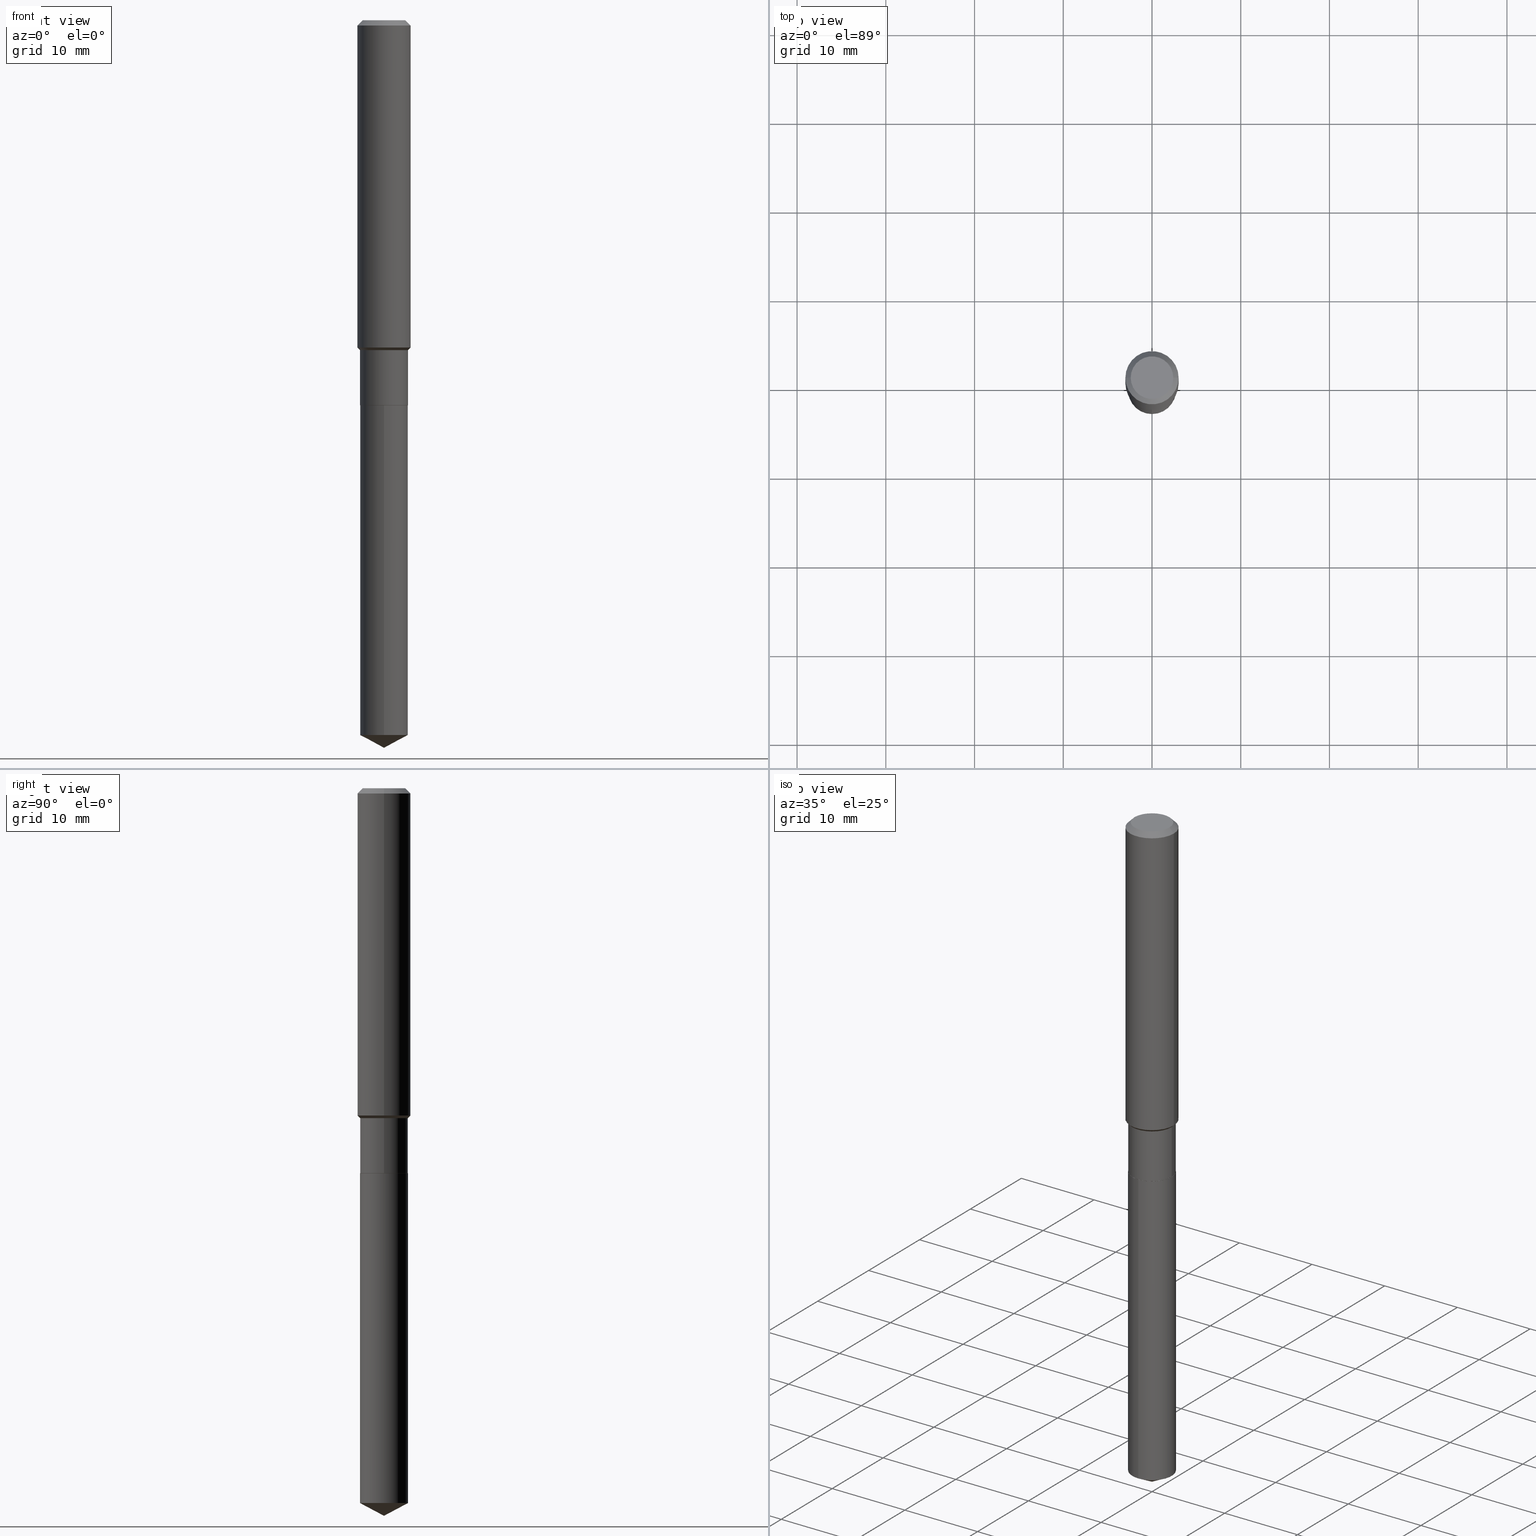
[diagram: canonical four-view strip — front | top / right | iso, engineering-drawing reading convention]
A machine part, canonical four-view strip (front | top / right | iso — engineering-drawing reading convention). The complete STEP part file that produces these views, byte-faithful:
ISO-10303-21;
HEADER;
FILE_DESCRIPTION (( 'STEP AP203' ),
    '1' );
FILE_NAME ('64824.STEP',
    '2024-04-24T19:02:47',
    ( '' ),
    ( '' ),
    'SwSTEP 2.0',
    'SolidWorks 2023',
    '' );
FILE_SCHEMA (( 'CONFIG_CONTROL_DESIGN' ));
ENDSEC;

DATA;
#1 = APPROVAL_ROLE ( '' ) ;
#2 = ORIENTED_EDGE ( 'NONE', *, *, #326, .T. ) ;
#3 = CALENDAR_DATE ( 2024, 24, 4 ) ;
#4 = ORIENTED_EDGE ( 'NONE', *, *, #111, .F. ) ;
#5 = APPROVAL_ROLE ( '' ) ;
#6 = VECTOR ( 'NONE', #345, 39.37007874015748143 ) ;
#7 = VERTEX_POINT ( 'NONE', #127 ) ;
#8 = CC_DESIGN_SECURITY_CLASSIFICATION ( #477, ( #139 ) ) ;
#9 = DIRECTION ( 'NONE',  ( -2.445468806185136597E-29, 3.491481338843145583E-15, 1.000000000000000000 ) ) ;
#10 = ORIENTED_EDGE ( 'NONE', *, *, #112, .T. ) ;
#11 = CARTESIAN_POINT ( 'NONE',  ( 4.178328002247924925E-29, -5.965545015547399442E-15, -1.708600000000000119 ) ) ;
#12 = CC_DESIGN_PERSON_AND_ORGANIZATION_ASSIGNMENT ( #296, #143, ( #183 ) ) ;
#13 = DIRECTION ( 'NONE',  ( -1.000000000000000000, 6.982962677686266711E-15, 0.000000000000000000 ) ) ;
#14 = CARTESIAN_POINT ( 'NONE',  ( 3.551554347222674167E-29, -5.070678348401900425E-15, -1.452299999999999924 ) ) ;
#15 = DIRECTION ( 'NONE',  ( -2.445468806185136597E-29, 3.491481338843145583E-15, 1.000000000000000000 ) ) ;
#16 = VECTOR ( 'NONE', #213, 39.37007874015748143 ) ;
#17 = CARTESIAN_POINT ( 'NONE',  ( 3.551554347222674167E-29, -5.070678348401900425E-15, -1.452299999999999924 ) ) ;
#18 = ORIENTED_EDGE ( 'NONE', *, *, #370, .T. ) ;
#19 = ADVANCED_FACE ( 'NONE', ( #165 ), #115, .T. ) ;
#20 = CARTESIAN_POINT ( 'NONE',  ( 5.776197320209327532E-31, -8.246878922347559293E-17, -0.02362000000000014088 ) ) ;
#21 = CARTESIAN_POINT ( 'NONE',  ( 4.177105267844832684E-29, -5.963799274877977939E-15, -1.708100000000000174 ) ) ;
#22 = ADVANCED_FACE ( 'NONE', ( #205 ), #271, .T. ) ;
#23 = CARTESIAN_POINT ( 'NONE',  ( -0.1063000000000000056, -4.782531623426127570E-15, -1.708100000000000174 ) ) ;
#24 = DIRECTION ( 'NONE',  ( 1.000000000000000000, -6.982962677686266711E-15, 0.000000000000000000 ) ) ;
#25 = CIRCLE ( 'NONE', #60, 0.1180999999999999966 ) ;
#26 =( CONVERSION_BASED_UNIT ( 'INCH', #409 ) LENGTH_UNIT ( ) NAMED_UNIT ( #81 ) );
#27 = ADVANCED_FACE ( 'NONE', ( #233 ), #267, .F. ) ;
#28 = DIRECTION ( 'NONE',  ( -6.982962677686265922E-15, -1.000000000000000000, 5.139883337091746339E-15 ) ) ;
#29 = CIRCLE ( 'NONE', #273, 0.1180999999999999966 ) ;
#31 = FACE_OUTER_BOUND ( 'NONE', #157, .T. ) ;
#30 = CIRCLE ( 'NONE', #53, 0.09447999999999998066 ) ;
#32 = CC_DESIGN_DATE_AND_TIME_ASSIGNMENT ( #223, #118, ( #40 ) ) ;
#33 = PERSON_AND_ORGANIZATION ( #125, #250 ) ;
#34 = VERTEX_POINT ( 'NONE', #55 ) ;
#35 = APPROVAL_STATUS ( 'not_yet_approved' ) ;
#36 = AXIS2_PLACEMENT_3D ( 'NONE', #479, #247, #362 ) ;
#37 = CYLINDRICAL_SURFACE ( 'NONE', #202, 0.1181000000000000799 ) ;
#38 = VERTEX_POINT ( 'NONE', #355 ) ;
#39 = EDGE_CURVE ( 'NONE', #38, #449, #288, .T. ) ;
#40 = PRODUCT_DEFINITION ( 'UNKNOWN', '', #139, #442 ) ;
#41 = VERTEX_POINT ( 'NONE', #170 ) ;
#42 = ORIENTED_EDGE ( 'NONE', *, *, #224, .T. ) ;
#43 = CC_DESIGN_APPROVAL ( #320, ( #139 ) ) ;
#44 = DIRECTION ( 'NONE',  ( -6.982962677686265922E-15, -1.000000000000000000, 2.569941668545873170E-15 ) ) ;
#45 = EDGE_LOOP ( 'NONE', ( #263, #330, #338 ) ) ;
#46 = EDGE_CURVE ( 'NONE', #237, #344, #437, .T. ) ;
#47 = CARTESIAN_POINT ( 'NONE',  ( 7.894676355900257304E-29, -1.127159301439400658E-14, -3.228299999999999947 ) ) ;
#48 = CARTESIAN_POINT ( 'NONE',  ( 4.178328002247924925E-29, -5.965545015547399442E-15, -1.708600000000000119 ) ) ;
#49 = DIRECTION ( 'NONE',  ( -2.445468806185136597E-29, 3.491481338843145583E-15, 1.000000000000000000 ) ) ;
#50 = EDGE_LOOP ( 'NONE', ( #434, #159, #276, #186 ) ) ;
#51 = DIRECTION ( 'NONE',  ( -2.445468806185136597E-29, 3.491481338843145583E-15, 1.000000000000000000 ) ) ;
#52 = EDGE_LOOP ( 'NONE', ( #294, #465, #195, #304 ) ) ;
#53 = AXIS2_PLACEMENT_3D ( 'NONE', #181, #248, #135 ) ;
#54 = DIRECTION ( 'NONE',  ( -2.445468806185136597E-29, 3.491481338843145583E-15, 1.000000000000000000 ) ) ;
#55 = CARTESIAN_POINT ( 'NONE',  ( -0.1180999999999999966, -1.737422597880008561E-15, -0.02362000000000014088 ) ) ;
#56 = DIRECTION ( 'NONE',  ( -2.445459330266783309E-29, 3.491494908897563498E-15, 1.000000000000000000 ) ) ;
#57 = ORIENTED_EDGE ( 'NONE', *, *, #339, .F. ) ;
#58 = DIRECTION ( 'NONE',  ( 1.000000000000000000, -6.982962677686265922E-15, 4.876176775795935793E-29 ) ) ;
#59 = EDGE_CURVE ( 'NONE', #257, #7, #145, .T. ) ;
#60 = AXIS2_PLACEMENT_3D ( 'NONE', #20, #169, #303 ) ;
#61 = UNCERTAINTY_MEASURE_WITH_UNIT (LENGTH_MEASURE( 1.000000000000000082E-05 ), #26, 'distance_accuracy_value', 'NONE');
#62 = LINE ( 'NONE', #323, #16 ) ;
#63 = DIRECTION ( 'NONE',  ( 1.000000000000000000, -6.982962677686267499E-15, 4.876176775795935232E-29 ) ) ;
#64 = CARTESIAN_POINT ( 'NONE',  ( 7.756473442508537005E-29, -1.107422804835909008E-14, -3.171779287414385529 ) ) ;
#65 = LOCAL_TIME ( 15, 2, 47.00000000000000000, #188 ) ;
#66 = AXIS2_PLACEMENT_3D ( 'NONE', #425, #380, #44 ) ;
#68 = DIRECTION ( 'NONE',  ( -2.445459330266783029E-29, 3.491494908897563498E-15, 1.000000000000000000 ) ) ;
#67 = LOCAL_TIME ( 15, 2, 47.00000000000000000, #80 ) ;
#69 = MANIFOLD_SOLID_BREP ( 'Body-Move/Copy2[1]', #470 ) ;
#70 = COORDINATED_UNIVERSAL_TIME_OFFSET ( 5, 0, .BEHIND. ) ;
#71 = APPROVAL_DATE_TIME ( #415, #365 ) ;
#72 = ORIENTED_EDGE ( 'NONE', *, *, #326, .F. ) ;
#73 = CALENDAR_DATE ( 2024, 24, 4 ) ;
#74 = AXIS2_PLACEMENT_3D ( 'NONE', #11, #204, #385 ) ;
#75 = EDGE_CURVE ( 'NONE', #480, #34, #29, .T. ) ;
#76 = VECTOR ( 'NONE', #101, 39.37007874015748143 ) ;
#77 = ORIENTED_EDGE ( 'NONE', *, *, #206, .F. ) ;
#78 = APPLICATION_PROTOCOL_DEFINITION ( 'international standard', 'config_control_design', 1994, #394 ) ;
#79 = EDGE_LOOP ( 'NONE', ( #225, #461, #91, #99 ) ) ;
#80 = COORDINATED_UNIVERSAL_TIME_OFFSET ( 5, 0, .BEHIND. ) ;
#81 = DIMENSIONAL_EXPONENTS ( 1.000000000000000000, 0.000000000000000000, 0.000000000000000000, 0.000000000000000000, 0.000000000000000000, 0.000000000000000000, 0.000000000000000000 ) ;
#82 = CYLINDRICAL_SURFACE ( 'NONE', #66, 0.1063000000000000056 ) ;
#83 = EDGE_LOOP ( 'NONE', ( #72, #372, #152, #191 ) ) ;
#84 = DIRECTION ( 'NONE',  ( -2.445468806185136597E-29, 3.491481338843145583E-15, 1.000000000000000000 ) ) ;
#85 = CIRCLE ( 'NONE', #331, 0.1181000000000001632 ) ;
#86 = DIRECTION ( 'NONE',  ( 2.445468806185136597E-29, -3.491481338843145583E-15, -1.000000000000000000 ) ) ;
#87 = LINE ( 'NONE', #162, #251 ) ;
#88 = DIRECTION ( 'NONE',  ( -2.445468806185136597E-29, 3.491481338843145583E-15, 1.000000000000000000 ) ) ;
#89 = ADVANCED_FACE ( 'NONE', ( #197 ), #460, .T. ) ;
#90 = DIRECTION ( 'NONE',  ( -6.982962677686265922E-15, -1.000000000000000000, 2.569941668545873170E-15 ) ) ;
#91 = ORIENTED_EDGE ( 'NONE', *, *, #463, .T. ) ;
#92 = DIRECTION ( 'NONE',  ( -2.445459330266783029E-29, 3.491494908897563498E-15, 1.000000000000000000 ) ) ;
#93 = DIRECTION ( 'NONE',  ( 1.000000000000000000, -6.982962677686267499E-15, 4.876176775795935232E-29 ) ) ;
#94 = AXIS2_PLACEMENT_3D ( 'NONE', #466, #49, #433 ) ;
#95 =( GEOMETRIC_REPRESENTATION_CONTEXT ( 3 ) GLOBAL_UNCERTAINTY_ASSIGNED_CONTEXT ( ( #61 ) ) GLOBAL_UNIT_ASSIGNED_CONTEXT ( ( #26, #451, #113 ) ) REPRESENTATION_CONTEXT ( 'NONE', 'WORKASPACE' ) );
#96 = DIRECTION ( 'NONE',  ( -2.445459330266783309E-29, 3.491494908897563498E-15, 1.000000000000000000 ) ) ;
#97 = CARTESIAN_POINT ( 'NONE',  ( 0.1180999999999999966, -9.071566814582237199E-16, -0.02362000000000014088 ) ) ;
#98 = ADVANCED_FACE ( 'NONE', ( #386 ), #373, .T. ) ;
#99 = ORIENTED_EDGE ( 'NONE', *, *, #153, .F. ) ;
#100 = AXIS2_PLACEMENT_3D ( 'NONE', #284, #322, #481 ) ;
#101 = DIRECTION ( 'NONE',  ( -0.7071067811866199593, 7.493145998870616062E-15, 0.7071067811864750752 ) ) ;
#102 = PLANE ( 'NONE',  #408 ) ;
#103 =( LENGTH_UNIT ( ) NAMED_UNIT ( * ) SI_UNIT ( $, .METRE. ) );
#104 = EDGE_CURVE ( 'NONE', #114, #237, #175, .T. ) ;
#105 = AXIS2_PLACEMENT_3D ( 'NONE', #174, #171, #448 ) ;
#106 = PRODUCT_DEFINITION_SHAPE ( 'NONE', 'NONE',  #40 ) ;
#107 = CIRCLE ( 'NONE', #164, 0.1062999999999999640 ) ;
#108 = DIRECTION ( 'NONE',  ( 1.000000000000000000, -6.982962677686266711E-15, 4.876176775795936353E-29 ) ) ;
#109 = APPROVAL_STATUS ( 'not_yet_approved' ) ;
#110 = VERTEX_POINT ( 'NONE', #404 ) ;
#111 = EDGE_CURVE ( 'NONE', #7, #257, #364, .T. ) ;
#112 = EDGE_CURVE ( 'NONE', #449, #41, #464, .T. ) ;
#113 =( NAMED_UNIT ( * ) SI_UNIT ( $, .STERADIAN. ) SOLID_ANGLE_UNIT ( ) );
#114 = VERTEX_POINT ( 'NONE', #262 ) ;
#115 = CONICAL_SURFACE ( 'NONE', #347, 74.04434902938388063, 1.082104136236488490 ) ;
#116 = AXIS2_PLACEMENT_3D ( 'NONE', #313, #390, #232 ) ;
#117 = EDGE_LOOP ( 'NONE', ( #187, #426, #379, #77 ) ) ;
#118 = DATE_TIME_ROLE ( 'creation_date' ) ;
#119 = CARTESIAN_POINT ( 'NONE',  ( -0.1062999999999999917, 7.553069281129864387E-16, -5.228828000940964357E-30 ) ) ;
#120 = EDGE_LOOP ( 'NONE', ( #455, #2, #474, #420 ) ) ;
#121 = CARTESIAN_POINT ( 'NONE',  ( 3.580410879135658789E-29, -5.111877828200250276E-15, -1.464100000000000179 ) ) ;
#122 = ORIENTED_EDGE ( 'NONE', *, *, #39, .F. ) ;
#123 = DIRECTION ( 'NONE',  ( 1.000000000000000000, -6.982962677686270655E-15, 0.000000000000000000 ) ) ;
#124 = DIRECTION ( 'NONE',  ( 2.438088387897960049E-29, -3.491481338843145188E-15, -1.000000000000000000 ) ) ;
#125 = PERSON ( 'UNSPECIFIED', 'UNSPECIFIED', 'UNSPECIFIED', ('UNSPECIFIED'), ('UNSPECIFIED'), ('UNSPECIFIED') ) ;
#126 = LINE ( 'NONE', #201, #258 ) ;
#127 = CARTESIAN_POINT ( 'NONE',  ( 0.1058000000000000052, -6.704342466846605785E-15, -1.708600000000000119 ) ) ;
#128 = ADVANCED_FACE ( 'NONE', ( #291 ), #82, .T. ) ;
#129 = EDGE_CURVE ( 'NONE', #110, #342, #194, .T. ) ;
#130 = CARTESIAN_POINT ( 'NONE',  ( 3.580410879135658789E-29, -5.111877828200250276E-15, -1.464100000000000179 ) ) ;
#131 = DIRECTION ( 'NONE',  ( -6.982962677686267499E-15, -1.000000000000000000, 3.541896320645544303E-15 ) ) ;
#132 = LINE ( 'NONE', #387, #324 ) ;
#133 = DIRECTION ( 'NONE',  ( -6.982962677686265922E-15, -1.000000000000000000, 5.139883337091746339E-15 ) ) ;
#134 = VECTOR ( 'NONE', #468, 39.37007874015748143 ) ;
#135 = DIRECTION ( 'NONE',  ( 1.000000000000000000, -6.982962677686267499E-15, 4.875432709231658792E-29 ) ) ;
#136 = ORIENTED_EDGE ( 'NONE', *, *, #39, .T. ) ;
#137 = LINE ( 'NONE', #279, #252 ) ;
#138 = FACE_OUTER_BOUND ( 'NONE', #150, .T. ) ;
#139 = PRODUCT_DEFINITION_FORMATION_WITH_SPECIFIED_SOURCE ( 'ANY', '', #183, .NOT_KNOWN. ) ;
#140 = PLANE ( 'NONE',  #100 ) ;
#141 = ADVANCED_FACE ( 'NONE', ( #287 ), #37, .T. ) ;
#142 = CARTESIAN_POINT ( 'NONE',  ( 0.1058000000000000052, -6.704342466846605785E-15, -1.708600000000000119 ) ) ;
#143 = PERSON_AND_ORGANIZATION_ROLE ( 'design_owner' ) ;
#144 = APPLICATION_CONTEXT ( 'configuration controlled 3d designs of mechanical parts and assemblies' ) ;
#145 = CIRCLE ( 'NONE', #222, 0.1058000000000000052 ) ;
#146 = DIRECTION ( 'NONE',  ( 1.000000000000000000, 0.000000000000000000, 0.000000000000000000 ) ) ;
#147 = CC_DESIGN_PERSON_AND_ORGANIZATION_ASSIGNMENT ( #329, #182, ( #139 ) ) ;
#148 = ORIENTED_EDGE ( 'NONE', *, *, #286, .F. ) ;
#149 = PERSON_AND_ORGANIZATION ( #125, #250 ) ;
#150 = EDGE_LOOP ( 'NONE', ( #220, #469, #203, #57 ) ) ;
#151 = PERSON_AND_ORGANIZATION ( #125, #250 ) ;
#152 = ORIENTED_EDGE ( 'NONE', *, *, #227, .T. ) ;
#153 = EDGE_CURVE ( 'NONE', #449, #38, #419, .T. ) ;
#154 = AXIS2_PLACEMENT_3D ( 'NONE', #436, #278, #93 ) ;
#155 = AXIS2_PLACEMENT_3D ( 'NONE', #214, #301, #334 ) ;
#156 = APPROVAL_PERSON_ORGANIZATION ( #459, #365, #5 ) ;
#157 = EDGE_LOOP ( 'NONE', ( #18, #361 ) ) ;
#158 = CARTESIAN_POINT ( 'NONE',  ( 4.178328002247924925E-29, -5.965545015547399442E-15, -1.708600000000000119 ) ) ;
#159 = ORIENTED_EDGE ( 'NONE', *, *, #339, .T. ) ;
#160 = CARTESIAN_POINT ( 'NONE',  ( 0.1062999999999999917, -7.422889326380501387E-16, 5.183375912671078649E-30 ) ) ;
#161 = CARTESIAN_POINT ( 'NONE',  ( 5.776197320209327532E-31, -8.246878922347559293E-17, -0.02362000000000014088 ) ) ;
#163 = AXIS2_PLACEMENT_3D ( 'NONE', #476, #124, #395 ) ;
#162 = CARTESIAN_POINT ( 'NONE',  ( -0.1181000000000000799, 8.391509709326788873E-16, -5.809262341591047988E-30 ) ) ;
#164 = AXIS2_PLACEMENT_3D ( 'NONE', #121, #51, #207 ) ;
#165 = FACE_OUTER_BOUND ( 'NONE', #333, .T. ) ;
#166 = CC_DESIGN_PERSON_AND_ORGANIZATION_ASSIGNMENT ( #253, #412, ( #477 ) ) ;
#167 = FACE_OUTER_BOUND ( 'NONE', #50, .T. ) ;
#168 = VERTEX_POINT ( 'NONE', #471 ) ;
#169 = DIRECTION ( 'NONE',  ( -2.445468806185136597E-29, 3.491481338843145583E-15, 1.000000000000000000 ) ) ;
#170 = CARTESIAN_POINT ( 'NONE',  ( -0.1062999999999999640, -4.782531623426127570E-15, -1.464100000000000179 ) ) ;
#171 = DIRECTION ( 'NONE',  ( -2.445468806185136597E-29, 3.491481338843145583E-15, 1.000000000000000000 ) ) ;
#172 = ORIENTED_EDGE ( 'NONE', *, *, #383, .F. ) ;
#173 = CIRCLE ( 'NONE', #478, 0.1181000000000001632 ) ;
#174 = CARTESIAN_POINT ( 'NONE',  ( 4.178328002247924925E-29, -5.965545015547399442E-15, -1.708600000000000119 ) ) ;
#175 = LINE ( 'NONE', #321, #410 ) ;
#176 = DIRECTION ( 'NONE',  ( -2.445468806185136597E-29, 3.491481338843145583E-15, 1.000000000000000000 ) ) ;
#177 = DIRECTION ( 'NONE',  ( 1.000000000000000000, -6.982962677686263555E-15, 0.000000000000000000 ) ) ;
#178 = AXIS2_PLACEMENT_3D ( 'NONE', #21, #15, #309 ) ;
#179 = PRODUCT_RELATED_PRODUCT_CATEGORY ( 'detail', '', ( #183 ) ) ;
#180 = CC_DESIGN_APPROVAL ( #365, ( #477 ) ) ;
#181 = CARTESIAN_POINT ( 'NONE',  ( 4.716267017698007905E-46, -6.733579360998555036E-32, -1.928573779297252010E-17 ) ) ;
#182 = PERSON_AND_ORGANIZATION_ROLE ( 'creator' ) ;
#183 = PRODUCT ( '64824', '64824', '', ( #421 ) ) ;
#184 = EDGE_CURVE ( 'NONE', #114, #344, #268, .T. ) ;
#185 = DIRECTION ( 'NONE',  ( 0.000000000000000000, 0.000000000000000000, 1.000000000000000000 ) ) ;
#186 = ORIENTED_EDGE ( 'NONE', *, *, #312, .F. ) ;
#187 = ORIENTED_EDGE ( 'NONE', *, *, #383, .T. ) ;
#188 = COORDINATED_UNIVERSAL_TIME_OFFSET ( 5, 0, .BEHIND. ) ;
#189 = ORIENTED_EDGE ( 'NONE', *, *, #422, .T. ) ;
#190 = DATE_AND_TIME ( #487, #65 ) ;
#191 = ORIENTED_EDGE ( 'NONE', *, *, #351, .F. ) ;
#192 = CC_DESIGN_DATE_AND_TIME_ASSIGNMENT ( #374, #454, ( #477 ) ) ;
#193 = CONICAL_SURFACE ( 'NONE', #94, 0.1062999999999999640, 0.7853981633974511656 ) ;
#194 = LINE ( 'NONE', #453, #429 ) ;
#195 = ORIENTED_EDGE ( 'NONE', *, *, #286, .T. ) ;
#196 = FACE_OUTER_BOUND ( 'NONE', #120, .T. ) ;
#197 = FACE_OUTER_BOUND ( 'NONE', #52, .T. ) ;
#198 = FACE_OUTER_BOUND ( 'NONE', #241, .T. ) ;
#199 = CC_DESIGN_PERSON_AND_ORGANIZATION_ASSIGNMENT ( #285, #226, ( #139 ) ) ;
#200 = EDGE_LOOP ( 'NONE', ( #4, #269 ) ) ;
#202 = AXIS2_PLACEMENT_3D ( 'NONE', #341, #9, #108 ) ;
#201 = CARTESIAN_POINT ( 'NONE',  ( 0.1180999999999999966, -8.926936027602933910E-16, -0.02362000000000014088 ) ) ;
#203 = ORIENTED_EDGE ( 'NONE', *, *, #209, .T. ) ;
#204 = DIRECTION ( 'NONE',  ( -2.445459330266783309E-29, 3.491494908897563498E-15, 1.000000000000000000 ) ) ;
#205 = FACE_OUTER_BOUND ( 'NONE', #352, .T. ) ;
#206 = EDGE_CURVE ( 'NONE', #344, #256, #305, .T. ) ;
#207 = DIRECTION ( 'NONE',  ( 1.000000000000000000, -6.982962677686263555E-15, 0.000000000000000000 ) ) ;
#208 = ORIENTED_EDGE ( 'NONE', *, *, #46, .T. ) ;
#209 = EDGE_CURVE ( 'NONE', #38, #110, #427, .T. ) ;
#210 = FACE_OUTER_BOUND ( 'NONE', #45, .T. ) ;
#211 = CARTESIAN_POINT ( 'NONE',  ( 4.178328002247924925E-29, -5.965545015547399442E-15, -1.708600000000000119 ) ) ;
#212 = DIRECTION ( 'NONE',  ( -2.445468806185136597E-29, 3.491481338843145583E-15, 1.000000000000000000 ) ) ;
#213 = DIRECTION ( 'NONE',  ( -0.7071067811865495711, 7.493145998870362049E-15, 0.7071067811865454633 ) ) ;
#214 = CARTESIAN_POINT ( 'NONE',  ( 4.178328002247924925E-29, -5.965545015547399442E-15, -1.708600000000000119 ) ) ;
#215 = AXIS2_PLACEMENT_3D ( 'NONE', #158, #56, #90 ) ;
#216 = CYLINDRICAL_SURFACE ( 'NONE', #275, 0.1062999999999999917 ) ;
#217 = ADVANCED_FACE ( 'NONE', ( #354 ), #356, .T. ) ;
#218 = CALENDAR_DATE ( 2024, 24, 4 ) ;
#219 = ORIENTED_EDGE ( 'NONE', *, *, #104, .T. ) ;
#220 = ORIENTED_EDGE ( 'NONE', *, *, #112, .F. ) ;
#221 = AXIS2_PLACEMENT_3D ( 'NONE', #64, #483, #28 ) ;
#222 = AXIS2_PLACEMENT_3D ( 'NONE', #48, #243, #306 ) ;
#223 = DATE_AND_TIME ( #73, #349 ) ;
#224 = EDGE_CURVE ( 'NONE', #457, #480, #126, .T. ) ;
#225 = ORIENTED_EDGE ( 'NONE', *, *, #458, .F. ) ;
#226 = PERSON_AND_ORGANIZATION_ROLE ( 'design_supplier' ) ;
#227 = EDGE_CURVE ( 'NONE', #342, #480, #132, .T. ) ;
#228 = ORIENTED_EDGE ( 'NONE', *, *, #129, .F. ) ;
#229 = EDGE_LOOP ( 'NONE', ( #298, #423, #122, #376 ) ) ;
#230 = AXIS2_PLACEMENT_3D ( 'NONE', #244, #443, #403 ) ;
#231 = AXIS2_PLACEMENT_3D ( 'NONE', #130, #242, #270 ) ;
#232 = DIRECTION ( 'NONE',  ( 1.000000000000000000, -6.982962677686266711E-15, 4.876176775795936353E-29 ) ) ;
#233 = FACE_OUTER_BOUND ( 'NONE', #428, .T. ) ;
#234 = LINE ( 'NONE', #310, #6 ) ;
#235 = ORIENTED_EDGE ( 'NONE', *, *, #209, .F. ) ;
#236 = CARTESIAN_POINT ( 'NONE',  ( 0.1181000000000001632, -5.895366240636649477E-15, -1.452299999999999924 ) ) ;
#237 = VERTEX_POINT ( 'NONE', #272 ) ;
#239 = AXIS2_PLACEMENT_3D ( 'NONE', #346, #86, #13 ) ;
#238 = CYLINDRICAL_SURFACE ( 'NONE', #116, 0.1181000000000000799 ) ;
#240 = LOCAL_TIME ( 15, 2, 47.00000000000000000, #255 ) ;
#241 = EDGE_LOOP ( 'NONE', ( #311, #189, #260, #228 ) ) ;
#242 = DIRECTION ( 'NONE',  ( -2.445468806185136597E-29, 3.491481338843145583E-15, 1.000000000000000000 ) ) ;
#243 = DIRECTION ( 'NONE',  ( -2.445468806185136597E-29, 3.491481338843145583E-15, 1.000000000000000000 ) ) ;
#244 = CARTESIAN_POINT ( 'NONE',  ( 4.178328002247924925E-29, -5.965545015547399442E-15, -1.708600000000000119 ) ) ;
#245 = AXIS2_PLACEMENT_3D ( 'NONE', #360, #212, #283 ) ;
#246 = ADVANCED_FACE ( 'NONE', ( #196 ), #238, .T. ) ;
#247 = DIRECTION ( 'NONE',  ( -2.445459330266783309E-29, 3.491494908897563498E-15, 1.000000000000000000 ) ) ;
#248 = DIRECTION ( 'NONE',  ( -2.445468806185136597E-29, 3.491481338843145583E-15, 1.000000000000000000 ) ) ;
#249 = CARTESIAN_POINT ( 'NONE',  ( 0.000000000000000000, 0.000000000000000000, 0.000000000000000000 ) ) ;
#250 = ORGANIZATION ( 'UNSPECIFIED', 'UNSPECIFIED', '' ) ;
#251 = VECTOR ( 'NONE', #439, 39.37007874015748143 ) ;
#252 = VECTOR ( 'NONE', #68, 39.37007874015748143 ) ;
#253 = PERSON_AND_ORGANIZATION ( #125, #250 ) ;
#254 = CARTESIAN_POINT ( 'NONE',  ( 4.177105267844832684E-29, -5.963799274877977939E-15, -1.708100000000000174 ) ) ;
#255 = COORDINATED_UNIVERSAL_TIME_OFFSET ( 5, 0, .BEHIND. ) ;
#256 = VERTEX_POINT ( 'NONE', #393 ) ;
#257 = VERTEX_POINT ( 'NONE', #343 ) ;
#258 = VECTOR ( 'NONE', #350, 39.37007874015748143 ) ;
#259 = CC_DESIGN_APPROVAL ( #414, ( #40 ) ) ;
#260 = ORIENTED_EDGE ( 'NONE', *, *, #295, .F. ) ;
#261 = COORDINATED_UNIVERSAL_TIME_OFFSET ( 5, 0, .BEHIND. ) ;
#262 = CARTESIAN_POINT ( 'NONE',  ( 7.894676355900257304E-29, -1.127159301439400500E-14, -3.228299999999999947 ) ) ;
#263 = ORIENTED_EDGE ( 'NONE', *, *, #104, .F. ) ;
#264 = CARTESIAN_POINT ( 'NONE',  ( 3.580410879135658789E-29, -5.111877828200250276E-15, -1.464100000000000179 ) ) ;
#265 = ORIENTED_EDGE ( 'NONE', *, *, #369, .F. ) ;
#266 = CARTESIAN_POINT ( 'NONE',  ( -0.1181000000000001632, -4.231527377469220651E-15, -1.452299999999999924 ) ) ;
#267 = PLANE ( 'NONE',  #163 ) ;
#268 = LINE ( 'NONE', #47, #282 ) ;
#269 = ORIENTED_EDGE ( 'NONE', *, *, #59, .F. ) ;
#270 = DIRECTION ( 'NONE',  ( 1.000000000000000000, -6.982962677686263555E-15, 0.000000000000000000 ) ) ;
#271 = CYLINDRICAL_SURFACE ( 'NONE', #154, 0.1062999999999999917 ) ;
#273 = AXIS2_PLACEMENT_3D ( 'NONE', #397, #88, #24 ) ;
#272 = CARTESIAN_POINT ( 'NONE',  ( 7.553069281130638457E-16, 0.1062999999999889034, -3.171779287414385973 ) ) ;
#274 = ADVANCED_FACE ( 'NONE', ( #198 ), #193, .T. ) ;
#275 = AXIS2_PLACEMENT_3D ( 'NONE', #249, #176, #63 ) ;
#276 = ORIENTED_EDGE ( 'NONE', *, *, #129, .T. ) ;
#277 = LINE ( 'NONE', #142, #384 ) ;
#278 = DIRECTION ( 'NONE',  ( -2.445468806185136597E-29, 3.491481338843145583E-15, 1.000000000000000000 ) ) ;
#279 = CARTESIAN_POINT ( 'NONE',  ( 7.553069281130281498E-16, 0.1062999999999940520, -1.708600000000000563 ) ) ;
#280 = EDGE_CURVE ( 'NONE', #168, #256, #444, .T. ) ;
#281 = FACE_OUTER_BOUND ( 'NONE', #79, .T. ) ;
#282 = VECTOR ( 'NONE', #308, 39.37007874015748854 ) ;
#283 = DIRECTION ( 'NONE',  ( 1.000000000000000000, -6.982962677686267499E-15, 4.875432709231658792E-29 ) ) ;
#284 = CARTESIAN_POINT ( 'NONE',  ( 4.178328002247924925E-29, -5.965545015547399442E-15, -1.708600000000000119 ) ) ;
#285 = PERSON_AND_ORGANIZATION ( #125, #250 ) ;
#286 = EDGE_CURVE ( 'NONE', #440, #34, #234, .T. ) ;
#287 = FACE_OUTER_BOUND ( 'NONE', #83, .T. ) ;
#288 = CIRCLE ( 'NONE', #178, 0.1063000000000000056 ) ;
#289 = CIRCLE ( 'NONE', #359, 0.1062999999999999640 ) ;
#290 = PERSON_AND_ORGANIZATION_ROLE ( 'creator' ) ;
#291 = FACE_OUTER_BOUND ( 'NONE', #382, .T. ) ;
#292 = ORIENTED_EDGE ( 'NONE', *, *, #447, .F. ) ;
#293 = DATE_AND_TIME ( #424, #67 ) ;
#294 = ORIENTED_EDGE ( 'NONE', *, *, #224, .F. ) ;
#295 = EDGE_CURVE ( 'NONE', #342, #302, #85, .T. ) ;
#296 = PERSON_AND_ORGANIZATION ( #125, #250 ) ;
#297 = CONICAL_SURFACE ( 'NONE', #230, 0.1058000000000000052, 0.7853981633975507526 ) ;
#298 = ORIENTED_EDGE ( 'NONE', *, *, #111, .T. ) ;
#299 = AXIS2_PLACEMENT_3D ( 'NONE', #254, #413, #332 ) ;
#300 = LOCAL_TIME ( 15, 2, 47.00000000000000000, #70 ) ;
#301 = DIRECTION ( 'NONE',  ( -2.445468806185136597E-29, 3.491481338843145583E-15, 1.000000000000000000 ) ) ;
#302 = VERTEX_POINT ( 'NONE', #266 ) ;
#303 = DIRECTION ( 'NONE',  ( 1.000000000000000000, -6.982962677686266711E-15, 0.000000000000000000 ) ) ;
#304 = ORIENTED_EDGE ( 'NONE', *, *, #351, .T. ) ;
#305 = LINE ( 'NONE', #475, #485 ) ;
#306 = DIRECTION ( 'NONE',  ( 1.000000000000000000, -6.982962677686264344E-15, 0.000000000000000000 ) ) ;
#307 = CIRCLE ( 'NONE', #221, 0.1063000000000000056 ) ;
#308 = DIRECTION ( 'NONE',  ( -6.165590087286841551E-15, -0.8829475928589272105, 0.4694715627858901952 ) ) ;
#309 = DIRECTION ( 'NONE',  ( 1.000000000000000000, -6.982962677686269077E-15, 0.000000000000000000 ) ) ;
#310 = CARTESIAN_POINT ( 'NONE',  ( -0.1180999999999999966, 7.422191030112725094E-16, -0.02362000000000014088 ) ) ;
#311 = ORIENTED_EDGE ( 'NONE', *, *, #353, .T. ) ;
#312 = EDGE_CURVE ( 'NONE', #302, #342, #173, .T. ) ;
#313 = CARTESIAN_POINT ( 'NONE',  ( 0.000000000000000000, 0.000000000000000000, 0.000000000000000000 ) ) ;
#314 = CARTESIAN_POINT ( 'NONE',  ( 7.756473442508537005E-29, -1.107422804835909008E-14, -3.171779287414385529 ) ) ;
#315 = CONICAL_SURFACE ( 'NONE', #105, 0.1058000000000000052, 0.7853981633975507526 ) ;
#317 = AXIS2_PLACEMENT_3D ( 'NONE', #314, #357, #133 ) ;
#316 = FACE_OUTER_BOUND ( 'NONE', #229, .T. ) ;
#318 = CARTESIAN_POINT ( 'NONE',  ( -8.838323384200168694E-28, 1.261888596555570187E-13, 36.14177874015747705 ) ) ;
#319 = CARTESIAN_POINT ( 'NONE',  ( -0.1058000000000000052, -5.213790801113213409E-15, -1.708600000000000119 ) ) ;
#320 = APPROVAL ( #336, 'UNSPECIFIED' ) ;
#321 = CARTESIAN_POINT ( 'NONE',  ( 7.894709020952549951E-29, -1.127154664280404842E-14, -3.228299999999999947 ) ) ;
#322 = DIRECTION ( 'NONE',  ( 2.445459330266782749E-29, -3.491494908897563498E-15, -1.000000000000000000 ) ) ;
#323 = CARTESIAN_POINT ( 'NONE',  ( -0.1062999999999999640, -4.356570900087264133E-15, -1.464100000000000179 ) ) ;
#324 = VECTOR ( 'NONE', #396, 39.37007874015748143 ) ;
#325 = AXIS2_PLACEMENT_3D ( 'NONE', #358, #327, #399 ) ;
#326 = EDGE_CURVE ( 'NONE', #302, #34, #87, .T. ) ;
#327 = DIRECTION ( 'NONE',  ( -2.445459330266783309E-29, 3.491494908897563498E-15, 1.000000000000000000 ) ) ;
#328 = ADVANCED_FACE ( 'NONE', ( #167 ), #452, .T. ) ;
#329 = PERSON_AND_ORGANIZATION ( #125, #250 ) ;
#330 = ORIENTED_EDGE ( 'NONE', *, *, #184, .T. ) ;
#331 = AXIS2_PLACEMENT_3D ( 'NONE', #14, #54, #123 ) ;
#332 = DIRECTION ( 'NONE',  ( 1.000000000000000000, -6.982962677686269077E-15, 0.000000000000000000 ) ) ;
#333 = EDGE_LOOP ( 'NONE', ( #391, #219, #172 ) ) ;
#334 = DIRECTION ( 'NONE',  ( 1.000000000000000000, -6.982962677686264344E-15, 0.000000000000000000 ) ) ;
#335 = ORIENTED_EDGE ( 'NONE', *, *, #280, .F. ) ;
#336 = APPROVAL_STATUS ( 'not_yet_approved' ) ;
#337 = APPROVAL_PERSON_ORGANIZATION ( #33, #414, #1 ) ;
#338 = ORIENTED_EDGE ( 'NONE', *, *, #46, .F. ) ;
#339 = EDGE_CURVE ( 'NONE', #41, #110, #107, .T. ) ;
#340 = AXIS2_PLACEMENT_3D ( 'NONE', #161, #388, #472 ) ;
#341 = CARTESIAN_POINT ( 'NONE',  ( 0.000000000000000000, 0.000000000000000000, 0.000000000000000000 ) ) ;
#342 = VERTEX_POINT ( 'NONE', #236 ) ;
#343 = CARTESIAN_POINT ( 'NONE',  ( -0.1058000000000000052, -5.211141573939102208E-15, -1.708600000000000119 ) ) ;
#344 = VERTEX_POINT ( 'NONE', #435 ) ;
#345 = DIRECTION ( 'NONE',  ( -0.7071067811865459074, 2.468850131082240100E-15, -0.7071067811865491270 ) ) ;
#346 = CARTESIAN_POINT ( 'NONE',  ( 5.776197320209327532E-31, -8.246878922347559293E-17, -0.02362000000000014088 ) ) ;
#347 = AXIS2_PLACEMENT_3D ( 'NONE', #318, #96, #131 ) ;
#348 = VECTOR ( 'NONE', #416, 39.37007874015748143 ) ;
#349 = LOCAL_TIME ( 15, 2, 47.00000000000000000, #261 ) ;
#350 = DIRECTION ( 'NONE',  ( 0.7071067811865459074, -7.319954787623249734E-15, -0.7071067811865491270 ) ) ;
#351 = EDGE_CURVE ( 'NONE', #34, #480, #25, .T. ) ;
#352 = EDGE_LOOP ( 'NONE', ( #136, #10, #368, #235 ) ) ;
#353 = EDGE_CURVE ( 'NONE', #110, #41, #289, .T. ) ;
#354 = FACE_OUTER_BOUND ( 'NONE', #117, .T. ) ;
#355 = CARTESIAN_POINT ( 'NONE',  ( 0.1063000000000000056, -6.706088207516028077E-15, -1.708100000000000174 ) ) ;
#356 = CYLINDRICAL_SURFACE ( 'NONE', #74, 0.1063000000000000056 ) ;
#357 = DIRECTION ( 'NONE',  ( -2.445459330266783309E-29, 3.491494908897563498E-15, 1.000000000000000000 ) ) ;
#359 = AXIS2_PLACEMENT_3D ( 'NONE', #264, #84, #177 ) ;
#358 = CARTESIAN_POINT ( 'NONE',  ( -8.838323384200168694E-28, 1.261888596555570187E-13, 36.14177874015747705 ) ) ;
#360 = CARTESIAN_POINT ( 'NONE',  ( 4.716267017698007905E-46, -6.733579360998555036E-32, -1.928573779297252010E-17 ) ) ;
#361 = ORIENTED_EDGE ( 'NONE', *, *, #280, .T. ) ;
#362 = DIRECTION ( 'NONE',  ( -6.982962677686265922E-15, -1.000000000000000000, 2.569941668545873170E-15 ) ) ;
#363 = CARTESIAN_POINT ( 'NONE',  ( -0.09447999999999998066, 7.009847083995354710E-16, -1.928573779297727792E-17 ) ) ;
#364 = CIRCLE ( 'NONE', #155, 0.1058000000000000052 ) ;
#365 = APPROVAL ( #109, 'UNSPECIFIED' ) ;
#366 = APPROVAL_ROLE ( '' ) ;
#367 = SECURITY_CLASSIFICATION_LEVEL ( 'unclassified' ) ;
#368 = ORIENTED_EDGE ( 'NONE', *, *, #353, .F. ) ;
#369 = EDGE_CURVE ( 'NONE', #457, #440, #489, .T. ) ;
#370 = EDGE_CURVE ( 'NONE', #256, #168, #401, .T. ) ;
#371 = DIRECTION ( 'NONE',  ( 0.7071067811865495711, -2.468850131082277965E-15, 0.7071067811865454633 ) ) ;
#372 = ORIENTED_EDGE ( 'NONE', *, *, #312, .T. ) ;
#373 = CONICAL_SURFACE ( 'NONE', #340, 0.1180999999999999966, 0.7853981633974460586 ) ;
#374 = DATE_AND_TIME ( #218, #300 ) ;
#375 = ADVANCED_BREP_SHAPE_REPRESENTATION ( '64824', ( #69, #405, #411 ), #95 ) ;
#376 = ORIENTED_EDGE ( 'NONE', *, *, #463, .F. ) ;
#377 = SHAPE_DEFINITION_REPRESENTATION ( #106, #375 ) ;
#378 = ADVANCED_FACE ( 'NONE', ( #31 ), #140, .F. ) ;
#379 = ORIENTED_EDGE ( 'NONE', *, *, #370, .F. ) ;
#380 = DIRECTION ( 'NONE',  ( -2.445459330266783309E-29, 3.491494908897563498E-15, 1.000000000000000000 ) ) ;
#381 = CONICAL_SURFACE ( 'NONE', #325, 74.04434902938388063, 1.082104136236488490 ) ;
#382 = EDGE_LOOP ( 'NONE', ( #292, #208, #431, #335 ) ) ;
#383 = EDGE_CURVE ( 'NONE', #344, #237, #307, .T. ) ;
#384 = VECTOR ( 'NONE', #441, 39.37007874015748143 ) ;
#385 = DIRECTION ( 'NONE',  ( -6.982962677686265922E-15, -1.000000000000000000, 2.569941668545873170E-15 ) ) ;
#386 = FACE_OUTER_BOUND ( 'NONE', #417, .T. ) ;
#387 = CARTESIAN_POINT ( 'NONE',  ( 0.1181000000000000799, -8.246878922347486570E-16, 5.758764772215004644E-30 ) ) ;
#388 = DIRECTION ( 'NONE',  ( 2.445468806185136597E-29, -3.491481338843145583E-15, -1.000000000000000000 ) ) ;
#389 = ADVANCED_FACE ( 'NONE', ( #138 ), #216, .T. ) ;
#390 = DIRECTION ( 'NONE',  ( -2.445468806185136597E-29, 3.491481338843145583E-15, 1.000000000000000000 ) ) ;
#391 = ORIENTED_EDGE ( 'NONE', *, *, #184, .F. ) ;
#392 = APPROVAL_PERSON_ORGANIZATION ( #151, #320, #366 ) ;
#393 = CARTESIAN_POINT ( 'NONE',  ( -7.422889326380084277E-16, -0.1063000000000059592, -1.708599999999999897 ) ) ;
#394 = APPLICATION_CONTEXT ( 'configuration controlled 3d designs of mechanical parts and assemblies' ) ;
#395 = DIRECTION ( 'NONE',  ( -1.000000000000000000, 6.982962677686265922E-15, -4.876176775795935793E-29 ) ) ;
#396 = DIRECTION ( 'NONE',  ( -2.445468806185136877E-29, 3.491481338843145188E-15, 1.000000000000000000 ) ) ;
#397 = CARTESIAN_POINT ( 'NONE',  ( 5.776197320209327532E-31, -8.246878922347559293E-17, -0.02362000000000014088 ) ) ;
#398 = ADVANCED_FACE ( 'NONE', ( #281 ), #315, .T. ) ;
#399 = DIRECTION ( 'NONE',  ( -6.982962677686267499E-15, -1.000000000000000000, 3.541896320645544303E-15 ) ) ;
#400 = CLOSED_SHELL ( 'NONE', ( #484, #98, #246, #274, #22, #389, #328, #141, #89, #27, #407, #398 ) ) ;
#401 = CIRCLE ( 'NONE', #36, 0.1063000000000000056 ) ;
#402 = ORIENTED_EDGE ( 'NONE', *, *, #369, .T. ) ;
#403 = DIRECTION ( 'NONE',  ( 1.000000000000000000, -6.982962677686264344E-15, 0.000000000000000000 ) ) ;
#404 = CARTESIAN_POINT ( 'NONE',  ( 0.1062999999999999640, -5.854166760838299626E-15, -1.464100000000000179 ) ) ;
#405 = MANIFOLD_SOLID_BREP ( 'Body-Move/Copy2[2]', #400 ) ;
#406 = DIRECTION ( 'NONE',  ( -2.438088387897960049E-29, 3.491481338843145188E-15, 1.000000000000000000 ) ) ;
#407 = ADVANCED_FACE ( 'NONE', ( #450 ), #102, .F. ) ;
#408 = AXIS2_PLACEMENT_3D ( 'NONE', #211, #406, #58 ) ;
#409 = LENGTH_MEASURE_WITH_UNIT ( LENGTH_MEASURE( 0.02539999999999999897 ), #103 );
#410 = VECTOR ( 'NONE', #482, 39.37007874015748854 ) ;
#411 = AXIS2_PLACEMENT_3D ( 'NONE', #488, #185, #146 ) ;
#412 = PERSON_AND_ORGANIZATION_ROLE ( 'classification_officer' ) ;
#413 = DIRECTION ( 'NONE',  ( -2.445468806185136597E-29, 3.491481338843145583E-15, 1.000000000000000000 ) ) ;
#414 = APPROVAL ( #35, 'UNSPECIFIED' ) ;
#415 = DATE_AND_TIME ( #3, #240 ) ;
#416 = DIRECTION ( 'NONE',  ( -2.445468806185136877E-29, 3.491481338843145188E-15, 1.000000000000000000 ) ) ;
#417 = EDGE_LOOP ( 'NONE', ( #265, #42, #490, #148 ) ) ;
#418 = APPROVAL_DATE_TIME ( #190, #414 ) ;
#419 = CIRCLE ( 'NONE', #299, 0.1063000000000000056 ) ;
#420 = ORIENTED_EDGE ( 'NONE', *, *, #227, .F. ) ;
#421 = MECHANICAL_CONTEXT ( 'NONE', #394, 'mechanical' ) ;
#422 = EDGE_CURVE ( 'NONE', #41, #302, #62, .T. ) ;
#423 = ORIENTED_EDGE ( 'NONE', *, *, #458, .T. ) ;
#424 = CALENDAR_DATE ( 2024, 24, 4 ) ;
#425 = CARTESIAN_POINT ( 'NONE',  ( 4.178328002247924925E-29, -5.965545015547399442E-15, -1.708600000000000119 ) ) ;
#426 = ORIENTED_EDGE ( 'NONE', *, *, #447, .T. ) ;
#427 = LINE ( 'NONE', #160, #134 ) ;
#428 = EDGE_LOOP ( 'NONE', ( #467, #402 ) ) ;
#429 = VECTOR ( 'NONE', #371, 39.37007874015748143 ) ;
#430 = DIRECTION ( 'NONE',  ( 1.000000000000000000, -6.982962677686270655E-15, 0.000000000000000000 ) ) ;
#431 = ORIENTED_EDGE ( 'NONE', *, *, #206, .T. ) ;
#432 = CC_DESIGN_PERSON_AND_ORGANIZATION_ASSIGNMENT ( #149, #290, ( #40 ) ) ;
#433 = DIRECTION ( 'NONE',  ( 1.000000000000000000, -6.982962677686263555E-15, 0.000000000000000000 ) ) ;
#434 = ORIENTED_EDGE ( 'NONE', *, *, #422, .F. ) ;
#435 = CARTESIAN_POINT ( 'NONE',  ( -7.422889326379726331E-16, -0.1063000000000110662, -3.171779287414385085 ) ) ;
#436 = CARTESIAN_POINT ( 'NONE',  ( 0.000000000000000000, 0.000000000000000000, 0.000000000000000000 ) ) ;
#437 = CIRCLE ( 'NONE', #317, 0.1063000000000000056 ) ;
#438 = EDGE_CURVE ( 'NONE', #440, #457, #30, .T. ) ;
#439 = DIRECTION ( 'NONE',  ( -2.445468806185136877E-29, 3.491481338843145188E-15, 1.000000000000000000 ) ) ;
#440 = VERTEX_POINT ( 'NONE', #363 ) ;
#441 = DIRECTION ( 'NONE',  ( 0.7071067811866199593, -2.468850131083015945E-15, 0.7071067811864750752 ) ) ;
#442 = DESIGN_CONTEXT ( 'detailed design', #144, 'design' ) ;
#443 = DIRECTION ( 'NONE',  ( -2.445468806185136597E-29, 3.491481338843145583E-15, 1.000000000000000000 ) ) ;
#444 = CIRCLE ( 'NONE', #215, 0.1063000000000000056 ) ;
#445 = LINE ( 'NONE', #319, #76 ) ;
#446 = ADVANCED_FACE ( 'NONE', ( #210 ), #381, .T. ) ;
#447 = EDGE_CURVE ( 'NONE', #237, #168, #137, .T. ) ;
#448 = DIRECTION ( 'NONE',  ( 1.000000000000000000, -6.982962677686264344E-15, 0.000000000000000000 ) ) ;
#449 = VERTEX_POINT ( 'NONE', #23 ) ;
#450 = FACE_OUTER_BOUND ( 'NONE', #200, .T. ) ;
#451 =( NAMED_UNIT ( * ) PLANE_ANGLE_UNIT ( ) SI_UNIT ( $, .RADIAN. ) );
#452 = CONICAL_SURFACE ( 'NONE', #231, 0.1062999999999999640, 0.7853981633974511656 ) ;
#453 = CARTESIAN_POINT ( 'NONE',  ( 0.1062999999999999640, -5.854166760838299626E-15, -1.464100000000000179 ) ) ;
#454 = DATE_TIME_ROLE ( 'classification_date' ) ;
#455 = ORIENTED_EDGE ( 'NONE', *, *, #295, .T. ) ;
#456 = APPROVAL_DATE_TIME ( #293, #320 ) ;
#457 = VERTEX_POINT ( 'NONE', #486 ) ;
#458 = EDGE_CURVE ( 'NONE', #257, #449, #445, .T. ) ;
#459 = PERSON_AND_ORGANIZATION ( #125, #250 ) ;
#460 = CONICAL_SURFACE ( 'NONE', #239, 0.1180999999999999966, 0.7853981633974460586 ) ;
#461 = ORIENTED_EDGE ( 'NONE', *, *, #59, .T. ) ;
#462 = APPLICATION_PROTOCOL_DEFINITION ( 'international standard', 'config_control_design', 1994, #144 ) ;
#463 = EDGE_CURVE ( 'NONE', #7, #38, #277, .T. ) ;
#464 = LINE ( 'NONE', #119, #348 ) ;
#465 = ORIENTED_EDGE ( 'NONE', *, *, #438, .F. ) ;
#466 = CARTESIAN_POINT ( 'NONE',  ( 3.580410879135658789E-29, -5.111877828200250276E-15, -1.464100000000000179 ) ) ;
#467 = ORIENTED_EDGE ( 'NONE', *, *, #438, .T. ) ;
#468 = DIRECTION ( 'NONE',  ( -2.445468806185136877E-29, 3.491481338843145188E-15, 1.000000000000000000 ) ) ;
#469 = ORIENTED_EDGE ( 'NONE', *, *, #153, .T. ) ;
#470 = CLOSED_SHELL ( 'NONE', ( #217, #19, #446, #128, #378 ) ) ;
#471 = CARTESIAN_POINT ( 'NONE',  ( 7.553069281130643387E-16, 0.1062999999999940659, -1.708600000000000563 ) ) ;
#472 = DIRECTION ( 'NONE',  ( -1.000000000000000000, 6.982962677686266711E-15, 0.000000000000000000 ) ) ;
#473 = DIRECTION ( 'NONE',  ( -2.445468806185136597E-29, 3.491481338843145583E-15, 1.000000000000000000 ) ) ;
#474 = ORIENTED_EDGE ( 'NONE', *, *, #75, .F. ) ;
#475 = CARTESIAN_POINT ( 'NONE',  ( -7.422889326380084277E-16, -0.1063000000000059592, -1.708599999999999897 ) ) ;
#476 = CARTESIAN_POINT ( 'NONE',  ( 2.358133508849003952E-46, -3.366789680499277518E-32, -9.642868896486260050E-18 ) ) ;
#477 = SECURITY_CLASSIFICATION ( '', '', #367 ) ;
#478 = AXIS2_PLACEMENT_3D ( 'NONE', #17, #473, #430 ) ;
#479 = CARTESIAN_POINT ( 'NONE',  ( 4.178328002247924925E-29, -5.965545015547399442E-15, -1.708600000000000119 ) ) ;
#480 = VERTEX_POINT ( 'NONE', #97 ) ;
#481 = DIRECTION ( 'NONE',  ( 6.982962677686265922E-15, 1.000000000000000000, -3.491494908897563498E-15 ) ) ;
#482 = DIRECTION ( 'NONE',  ( 6.273719981627772387E-15, 0.8829475928589306521, 0.4694715627858840334 ) ) ;
#483 = DIRECTION ( 'NONE',  ( -2.445459330266783309E-29, 3.491494908897563498E-15, 1.000000000000000000 ) ) ;
#484 = ADVANCED_FACE ( 'NONE', ( #316 ), #297, .T. ) ;
#485 = VECTOR ( 'NONE', #92, 39.37007874015748143 ) ;
#486 = CARTESIAN_POINT ( 'NONE',  ( 0.09447999999999998066, -7.704367267948738690E-16, -1.928573779296752193E-17 ) ) ;
#487 = CALENDAR_DATE ( 2024, 24, 4 ) ;
#488 = CARTESIAN_POINT ( 'NONE',  ( 0.000000000000000000, 0.000000000000000000, 0.000000000000000000 ) ) ;
#489 = CIRCLE ( 'NONE', #245, 0.09447999999999998066 ) ;
#490 = ORIENTED_EDGE ( 'NONE', *, *, #75, .T. ) ;
ENDSEC;
END-ISO-10303-21;
